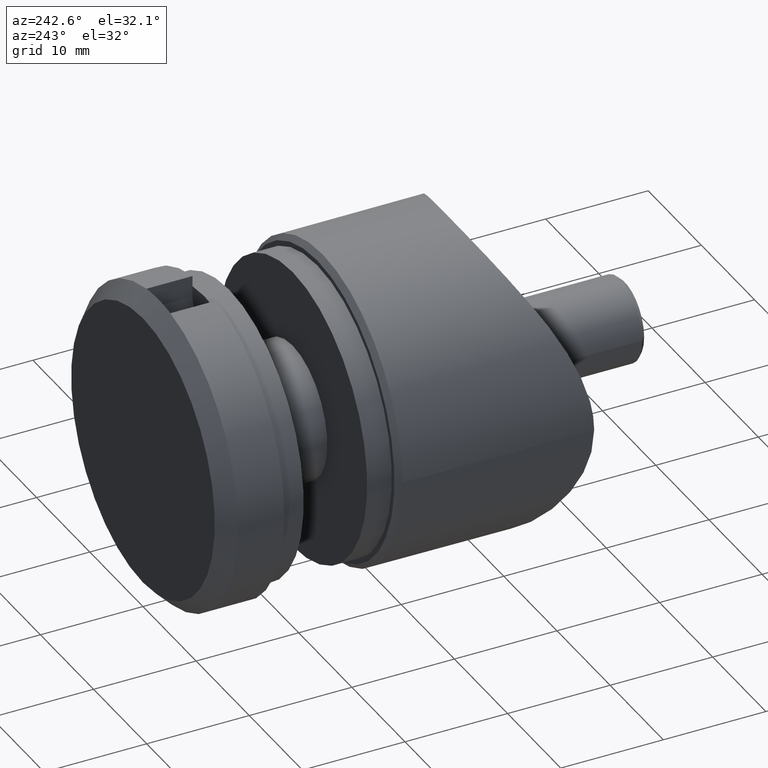
[diagram: clean part render]
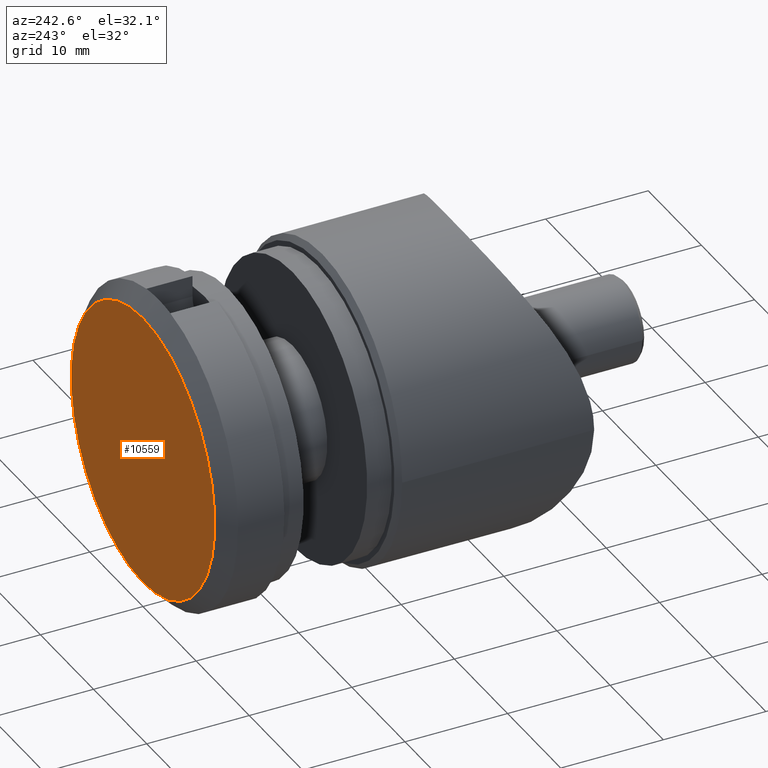
[diagram: same view with one face highlighted and labeled with its STEP entity id]
A machine part, auxiliary view. The second image highlights one B-rep face of the part: STEP entity #10559.
In plain terms, the highlighted planar face has unit normal (0, 1, 0).
Its self-contained STEP definition (entity closure, byte-faithful):
#608 = CIRCLE ( 'NONE', #7137, 13.50000000000000000 ) ;
#788 = DIRECTION ( 'NONE',  ( -0.000000000000000000, -1.000000000000000000, -0.000000000000000000 ) ) ;
#994 = ORIENTED_EDGE ( 'NONE', *, *, #9106, .F. ) ;
#1476 = EDGE_CURVE ( 'NONE', #7502, #5496, #608, .T. ) ;
#3959 = PLANE ( 'NONE',  #4332 ) ;
#4133 = CARTESIAN_POINT ( 'NONE',  ( 0.000000000000000000, 11.00000000000000000, 0.000000000000000000 ) ) ;
#4332 = AXIS2_PLACEMENT_3D ( 'NONE', #11666, #6177, #7245 ) ;
#4757 = AXIS2_PLACEMENT_3D ( 'NONE', #4133, #12808, #10566 ) ;
#5326 = ORIENTED_EDGE ( 'NONE', *, *, #1476, .F. ) ;
#5496 = VERTEX_POINT ( 'NONE', #6206 ) ;
#6177 = DIRECTION ( 'NONE',  ( 0.000000000000000000, 1.000000000000000000, 0.000000000000000000 ) ) ;
#6206 = CARTESIAN_POINT ( 'NONE',  ( 1.745121688784978228E-15, 11.00000000000000000, 13.50000000000000000 ) ) ;
#6325 = DIRECTION ( 'NONE',  ( 0.000000000000000000, 0.000000000000000000, -1.000000000000000000 ) ) ;
#7137 = AXIS2_PLACEMENT_3D ( 'NONE', #8699, #788, #6325 ) ;
#7245 = DIRECTION ( 'NONE',  ( 0.000000000000000000, -0.000000000000000000, 1.000000000000000000 ) ) ;
#7308 = CARTESIAN_POINT ( 'NONE',  ( 0.000000000000000000, 11.00000000000000000, -13.50000000000000000 ) ) ;
#7502 = VERTEX_POINT ( 'NONE', #7308 ) ;
#8382 = CIRCLE ( 'NONE', #4757, 13.50000000000000000 ) ;
#8699 = CARTESIAN_POINT ( 'NONE',  ( 0.000000000000000000, 11.00000000000000000, 0.000000000000000000 ) ) ;
#9106 = EDGE_CURVE ( 'NONE', #5496, #7502, #8382, .T. ) ;
#10202 = EDGE_LOOP ( 'NONE', ( #5326, #994 ) ) ;
#10559 = ADVANCED_FACE ( 'NONE', ( #11841 ), #3959, .T. ) ;
#10566 = DIRECTION ( 'NONE',  ( 0.000000000000000000, 0.000000000000000000, -1.000000000000000000 ) ) ;
#11666 = CARTESIAN_POINT ( 'NONE',  ( 0.000000000000000000, 11.00000000000000000, 0.000000000000000000 ) ) ;
#11841 = FACE_OUTER_BOUND ( 'NONE', #10202, .T. ) ;
#12808 = DIRECTION ( 'NONE',  ( -0.000000000000000000, -1.000000000000000000, -0.000000000000000000 ) ) ;